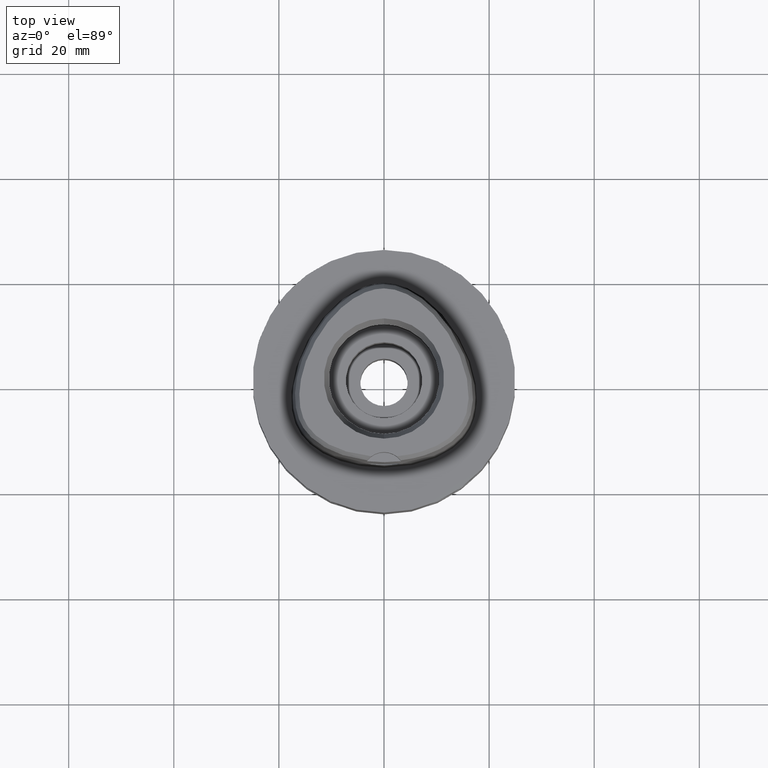
[diagram: clean part render]
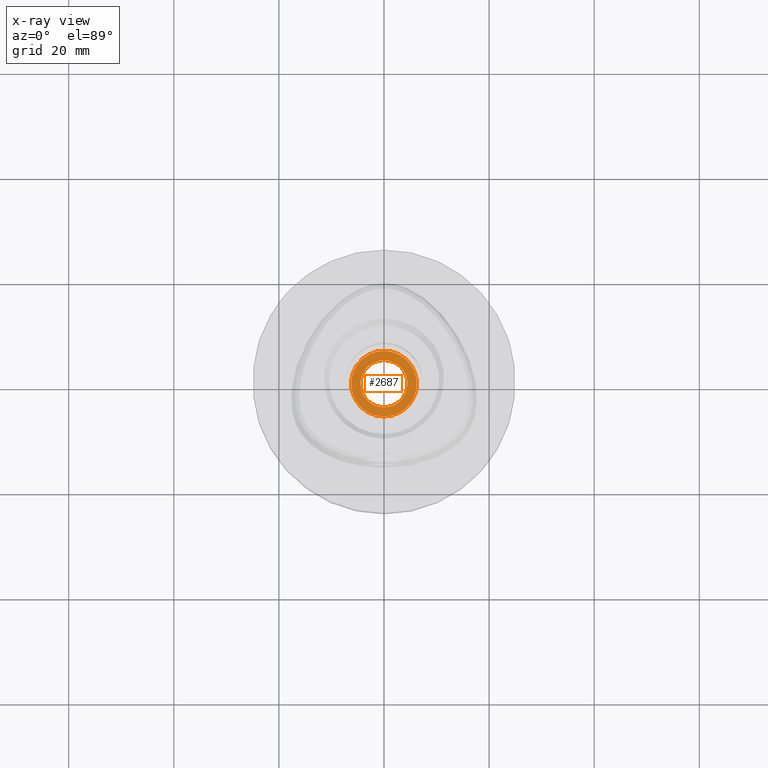
[diagram: x-ray — body ghosted, one internal face saturated and labeled with its STEP entity id]
A machine part, top view, then the same camera in x-ray: the body is ghosted and one INTERNAL B-rep face — a face not visible from any outside direction — is saturated and labeled: STEP entity #2687.
In plain terms, the highlighted planar face has unit normal (0, 0, -1).
Its self-contained STEP definition (entity closure, byte-faithful):
#748=CARTESIAN_POINT('',(0.E0,1.279755905109E-14,-2.78E1));
#749=DIRECTION('',(0.E0,0.E0,1.E0));
#750=DIRECTION('',(0.E0,-1.E0,0.E0));
#751=AXIS2_PLACEMENT_3D('',#748,#749,#750);
#756=CARTESIAN_POINT('',(0.E0,1.279755905109E-14,-2.78E1));
#757=DIRECTION('',(0.E0,0.E0,1.E0));
#758=DIRECTION('',(0.E0,1.E0,0.E0));
#759=AXIS2_PLACEMENT_3D('',#756,#757,#758);
#764=CARTESIAN_POINT('',(0.E0,1.279755905109E-14,-2.78E1));
#765=DIRECTION('',(0.E0,0.E0,-1.E0));
#766=DIRECTION('',(0.E0,-1.E0,0.E0));
#767=AXIS2_PLACEMENT_3D('',#764,#765,#766);
#772=CARTESIAN_POINT('',(0.E0,1.279755905109E-14,-2.78E1));
#773=DIRECTION('',(0.E0,0.E0,-1.E0));
#774=DIRECTION('',(0.E0,1.E0,0.E0));
#775=AXIS2_PLACEMENT_3D('',#772,#773,#774);
#1638=CARTESIAN_POINT('',(0.E0,6.25E0,-2.78E1));
#1639=VERTEX_POINT('',#1638);
#1640=CARTESIAN_POINT('',(0.E0,-6.25E0,-2.78E1));
#1641=VERTEX_POINT('',#1640);
#1642=CARTESIAN_POINT('',(0.E0,-4.5E0,-2.78E1));
#1643=CARTESIAN_POINT('',(0.E0,4.5E0,-2.78E1));
#1644=VERTEX_POINT('',#1642);
#1645=VERTEX_POINT('',#1643);
#2672=CARTESIAN_POINT('',(0.E0,0.E0,-2.78E1));
#2673=DIRECTION('',(0.E0,0.E0,-1.E0));
#2674=DIRECTION('',(0.E0,-1.E0,0.E0));
#2675=AXIS2_PLACEMENT_3D('',#2672,#2673,#2674);
#2676=PLANE('',#2675);
#2677=ORIENTED_EDGE('',*,*,#2665,.T.);
#2678=ORIENTED_EDGE('',*,*,#2654,.T.);
#2679=EDGE_LOOP('',(#2677,#2678));
#2680=FACE_OUTER_BOUND('',#2679,.F.);
#2682=ORIENTED_EDGE('',*,*,#2681,.T.);
#2684=ORIENTED_EDGE('',*,*,#2683,.T.);
#2685=EDGE_LOOP('',(#2682,#2684));
#2686=FACE_BOUND('',#2685,.F.);
#752=CIRCLE('',#751,6.25E0);
#760=CIRCLE('',#759,6.25E0);
#768=CIRCLE('',#767,4.5E0);
#776=CIRCLE('',#775,4.5E0);
#2654=EDGE_CURVE('',#1639,#1641,#760,.T.);
#2665=EDGE_CURVE('',#1641,#1639,#752,.T.);
#2681=EDGE_CURVE('',#1644,#1645,#768,.T.);
#2683=EDGE_CURVE('',#1645,#1644,#776,.T.);
#2687=ADVANCED_FACE('',(#2680,#2686),#2676,.T.);